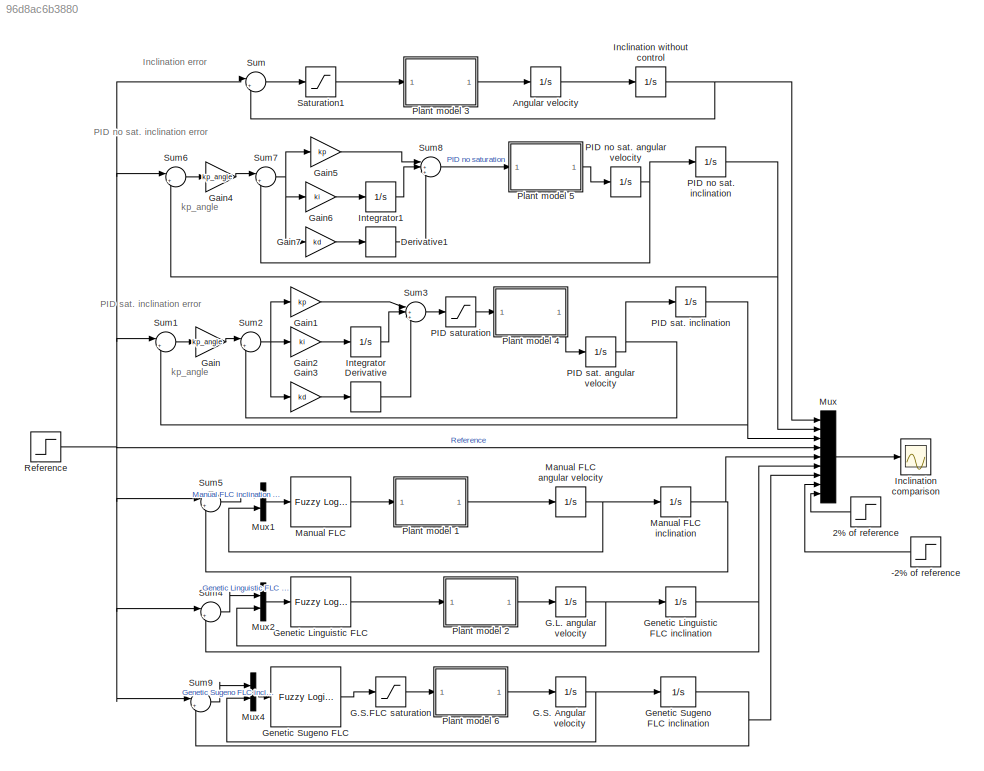
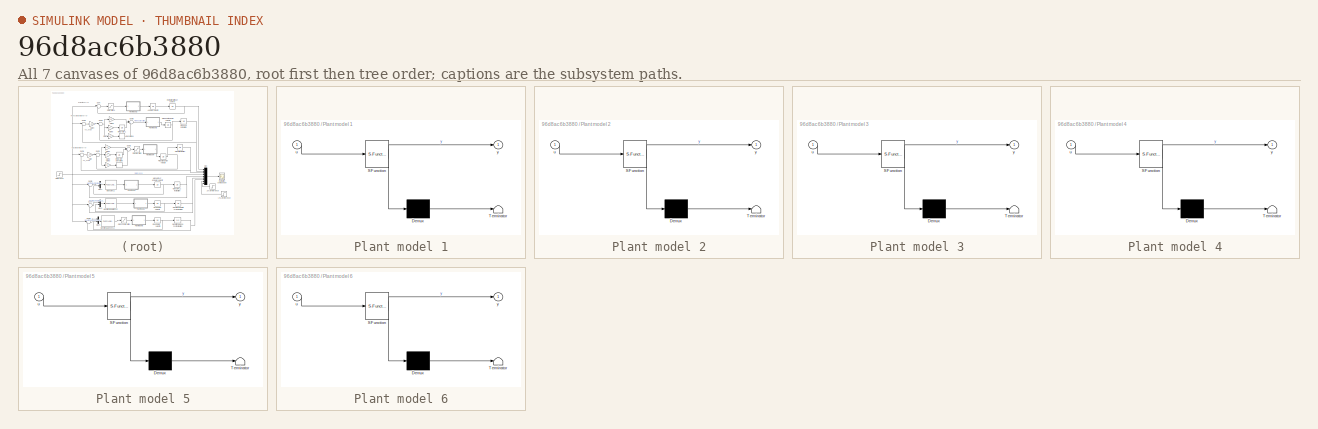
[diagram: thumbnail index - all 7 canvases of the model, root first then tree order]
MODEL slx_96d8ac6b3880
KIND model
CONFIG AbsTol = auto
CONFIG EnableMultiTasking = on
CONFIG FixedStep = auto
CONFIG MaxStep = 0.1
CONFIG MinStep = auto
CONFIG RelTol = 1e-3
CONFIG SampleTimeConstraint = Unconstrained
CONFIG SolverName = ode45
CONFIG StartTime = 0.0
CONFIG StopTime = 5
BLOCK [Step] -2% of reference
  After = -fi0*0.02
  Before = -fi0*0.02
  SampleTime = 0
  Time = 0
BLOCK [Step] 2% of reference
  After = fi0*0.02
  Before = fi0*0.02
  SampleTime = 0
  Time = 0
BLOCK [Integrator] Angular velocity 
  InitialCondition = v0
  Ports = [1, 1]
BLOCK [Derivative] Derivative
BLOCK [Derivative] Derivative1
BLOCK [Integrator] G.L. angular velocity
  InitialCondition = v0
  NameLocation = top
  Ports = [1, 1]
BLOCK [Integrator] G.S. Angular velocity
  InitialCondition = v0
  NameLocation = top
  Ports = [1, 1]
BLOCK [Saturate] G.S.FLC saturation
  LowerLimit = -45
  NameLocation = top
  UpperLimit = 45
BLOCK [Gain] Gain
  Gain = kp_angle
BLOCK [Gain] Gain1
  Gain = kp
BLOCK [Gain] Gain2
  Gain = ki
BLOCK [Gain] Gain3
  Gain = kd
BLOCK [Gain] Gain4
  Gain = kp_angle
BLOCK [Gain] Gain5
  Gain = kp
BLOCK [Gain] Gain6
  Gain = ki
BLOCK [Gain] Gain7
  Gain = kd
BLOCK [Reference] Genetic Linguistic FLC  REF=fuzblock/Fuzzy Logic   (lib defined in mdl_858b3b3e7478)
Controller 
with Ruleviewer
  Ports = [1, 1]
  SourceBlock = fuzblock/Fuzzy Logic \nController \nwith Ruleviewer
  SourceProductBaseCode = FL
  SourceType = Fuzzy Inference System
BLOCK [Integrator] Genetic Linguistic FLC inclination
  InitialCondition = fi0
  Ports = [1, 1]
BLOCK [Reference] Genetic Sugeno FLC  REF=fuzblock/Fuzzy Logic   (lib defined in mdl_858b3b3e7478)
Controller 
with Ruleviewer
  Ports = [1, 1]
  SourceBlock = fuzblock/Fuzzy Logic \nController \nwith Ruleviewer
  SourceProductBaseCode = FL
  SourceType = Fuzzy Inference System
BLOCK [Integrator] Genetic Sugeno FLC inclination
  InitialCondition = fi0
  Ports = [1, 1]
BLOCK [Scope] Inclination comparison
  Floating = off
  NumInputPorts = 1
  Ports = [1]
  ScopeSpecificationString = Simulink.scopes.TimeScopeBlockCfg('CurrentConfiguration', extmgr.ConfigurationSet(extmgr.Configuration('Core','General UI',true,'FigureColor',[1 1 1]),extmgr.Configuration('Core','Source UI',true),extmgr.Configuration('Sources','WiredSimulink',true,'DataLoggingLimitDataPoints',true,'DataLoggingSaveFormat','Array','DataLoggingDecimation','1','DataLoggingDecimateData',true),extmgr.Configuration('Vis...<+3499ch>
BLOCK [Integrator] Inclination without control
  InitialCondition = fi0
  Ports = [1, 1]
BLOCK [Integrator] Integrator
  LimitOutput = on
  LowerSaturationLimit = -3
  Ports = [1, 1]
  UpperSaturationLimit = 3
BLOCK [Integrator] Integrator1
  Ports = [1, 1]
BLOCK [Reference] Manual FLC   REF=fuzblock/Fuzzy Logic   (lib defined in mdl_858b3b3e7478)
Controller 
with Ruleviewer
  Ports = [1, 1]
  SourceBlock = fuzblock/Fuzzy Logic \nController \nwith Ruleviewer
  SourceProductBaseCode = FL
  SourceType = Fuzzy Inference System
BLOCK [Integrator] Manual FLC angular velocity
  InitialCondition = v0
  NameLocation = top
  Ports = [1, 1]
BLOCK [Integrator] Manual FLC inclination
  InitialCondition = fi0
  Ports = [1, 1]
BLOCK [Mux] Mux
  DisplayOption = bar
  Inputs = 9
  Ports = [9, 1]
BLOCK [Mux] Mux1
  DisplayOption = bar
  Inputs = 2
  Ports = [2, 1]
BLOCK [Mux] Mux2
  DisplayOption = bar
  Inputs = 2
  Ports = [2, 1]
BLOCK [Mux] Mux4
  DisplayOption = bar
  Inputs = 2
  Ports = [2, 1]
BLOCK [Integrator] PID no sat. angular velocity
  InitialCondition = v0
  Ports = [1, 1]
BLOCK [Integrator] PID no sat. inclination
  InitialCondition = fi0
  Ports = [1, 1]
BLOCK [Integrator] PID sat. angular velocity
  InitialCondition = v0
  Ports = [1, 1]
BLOCK [Integrator] PID sat. inclination
  InitialCondition = fi0
  Ports = [1, 1]
BLOCK [Saturate] PID saturation
  LowerLimit = -45
  UpperLimit = 45
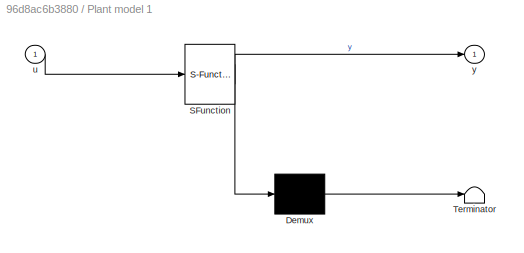
BLOCK [SubSystem] Plant model 1
  ErrorFcn = Stateflow.Translate.translate
  PermitHierarchicalResolution = ExplicitOnly
  Ports = [1, 1]
  RequestExecContextInheritance = off
  SFBlockType = MATLAB Function
  TreatAsAtomicUnit = on
BLOCK [Demux] Plant model 1/ Demux 
  Outputs = 1
  Ports = [1, 1]
BLOCK [S-Function] Plant model 1/ SFunction 
  EnableBusSupport = on
  FunctionName = sf_sfun
  PortCounts = [1 2]
  Ports = [1, 2]
  SFcnIsStateOwnerBlock = off
  SFunctionDeploymentMode = off
  Tag = Stateflow S-Function 4
BLOCK [Terminator] Plant model 1/ Terminator 
BLOCK [Inport] Plant model 1/u
BLOCK [Outport] Plant model 1/y
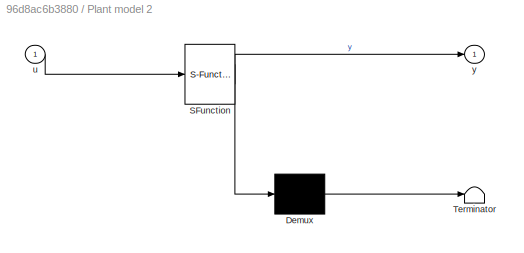
BLOCK [SubSystem] Plant model 2
  ErrorFcn = Stateflow.Translate.translate
  PermitHierarchicalResolution = ExplicitOnly
  Ports = [1, 1]
  RequestExecContextInheritance = off
  SFBlockType = MATLAB Function
  TreatAsAtomicUnit = on
BLOCK [Demux] Plant model 2/ Demux 
  Outputs = 1
  Ports = [1, 1]
BLOCK [S-Function] Plant model 2/ SFunction 
  EnableBusSupport = on
  FunctionName = sf_sfun
  PortCounts = [1 2]
  Ports = [1, 2]
  SFcnIsStateOwnerBlock = off
  SFunctionDeploymentMode = off
  Tag = Stateflow S-Function 3
BLOCK [Terminator] Plant model 2/ Terminator 
BLOCK [Inport] Plant model 2/u
BLOCK [Outport] Plant model 2/y
BLOCK [SubSystem] Plant model 3
  ErrorFcn = Stateflow.Translate.translate
  PermitHierarchicalResolution = ExplicitOnly
  Ports = [1, 1]
  RequestExecContextInheritance = off
  SFBlockType = MATLAB Function
  TreatAsAtomicUnit = on
BLOCK [Demux] Plant model 3/ Demux 
  Outputs = 1
  Ports = [1, 1]
BLOCK [S-Function] Plant model 3/ SFunction 
  EnableBusSupport = on
  FunctionName = sf_sfun
  PortCounts = [1 2]
  Ports = [1, 2]
  SFcnIsStateOwnerBlock = off
  SFunctionDeploymentMode = off
  Tag = Stateflow S-Function 2
BLOCK [Terminator] Plant model 3/ Terminator 
BLOCK [Inport] Plant model 3/u
BLOCK [Outport] Plant model 3/y
BLOCK [SubSystem] Plant model 4
  ErrorFcn = Stateflow.Translate.translate
  PermitHierarchicalResolution = ExplicitOnly
  Ports = [1, 1]
  RequestExecContextInheritance = off
  SFBlockType = MATLAB Function
  TreatAsAtomicUnit = on
BLOCK [Demux] Plant model 4/ Demux 
  Outputs = 1
  Ports = [1, 1]
BLOCK [S-Function] Plant model 4/ SFunction 
  EnableBusSupport = on
  FunctionName = sf_sfun
  PortCounts = [1 2]
  Ports = [1, 2]
  SFcnIsStateOwnerBlock = off
  SFunctionDeploymentMode = off
  Tag = Stateflow S-Function 1
BLOCK [Terminator] Plant model 4/ Terminator 
BLOCK [Inport] Plant model 4/u
BLOCK [Outport] Plant model 4/y
BLOCK [SubSystem] Plant model 5
  ErrorFcn = Stateflow.Translate.translate
  NameLocation = top
  PermitHierarchicalResolution = ExplicitOnly
  Ports = [1, 1]
  RequestExecContextInheritance = off
  SFBlockType = MATLAB Function
  TreatAsAtomicUnit = on
BLOCK [Demux] Plant model 5/ Demux 
  Outputs = 1
  Ports = [1, 1]
BLOCK [S-Function] Plant model 5/ SFunction 
  EnableBusSupport = on
  FunctionName = sf_sfun
  PortCounts = [1 2]
  Ports = [1, 2]
  SFcnIsStateOwnerBlock = off
  SFunctionDeploymentMode = off
  Tag = Stateflow S-Function 5
BLOCK [Terminator] Plant model 5/ Terminator 
BLOCK [Inport] Plant model 5/u
BLOCK [Outport] Plant model 5/y
BLOCK [SubSystem] Plant model 6
  ErrorFcn = Stateflow.Translate.translate
  PermitHierarchicalResolution = ExplicitOnly
  Ports = [1, 1]
  RequestExecContextInheritance = off
  SFBlockType = MATLAB Function
  TreatAsAtomicUnit = on
BLOCK [Demux] Plant model 6/ Demux 
  Outputs = 1
  Ports = [1, 1]
BLOCK [S-Function] Plant model 6/ SFunction 
  EnableBusSupport = on
  FunctionName = sf_sfun
  PortCounts = [1 2]
  Ports = [1, 2]
  SFcnIsStateOwnerBlock = off
  SFunctionDeploymentMode = off
  Tag = Stateflow S-Function 6
BLOCK [Terminator] Plant model 6/ Terminator 
BLOCK [Inport] Plant model 6/u
BLOCK [Outport] Plant model 6/y
BLOCK [Step] Reference
  After = 0
  Before = fi0
  SampleTime = 0
BLOCK [Saturate] Saturation1
  LowerLimit = -45
  UpperLimit = 45
BLOCK [Sum] Sum
  Inputs = |+-
  Ports = [2, 1]
BLOCK [Sum] Sum1
  Inputs = |+-
  Ports = [2, 1]
BLOCK [Sum] Sum2
  Inputs = |+-
  Ports = [2, 1]
BLOCK [Sum] Sum3
  Inputs = |++-
  Ports = [3, 1]
BLOCK [Sum] Sum4
  Inputs = |+-
  Ports = [2, 1]
BLOCK [Sum] Sum5
  Inputs = |+-
  Ports = [2, 1]
BLOCK [Sum] Sum6
  Inputs = |+-
  Ports = [2, 1]
BLOCK [Sum] Sum7
  Inputs = |+-
  Ports = [2, 1]
BLOCK [Sum] Sum8
  Inputs = |++-
  Ports = [3, 1]
BLOCK [Sum] Sum9
  Inputs = |+-
  Ports = [2, 1]
ANNOTATION (root): Inclination error
ANNOTATION (root): PID no sat. inclination error
ANNOTATION (root): PID sat. inclination error
ANNOTATION (root): kp_angle
LINE -2% of reference:1 -> Mux:8
LINE 2% of reference:1 -> Mux:9
LINE Angular velocity :1 -> Inclination without control:1
LINE Derivative1:1 -> Sum8:3
LINE Derivative:1 -> Sum3:3
NET G.L. angular velocity:1 -> Genetic Linguistic FLC inclination:1, Mux2:2
NET G.S. Angular velocity:1 -> Genetic Sugeno FLC inclination:1, Mux4:2
LINE G.S.FLC saturation:1 -> Plant model 6:1
LINE Gain1:1 -> Sum3:1
LINE Gain2:1 -> Integrator:1
LINE Gain3:1 -> Derivative:1
LINE Gain4:1 -> Sum7:1
LINE Gain5:1 -> Sum8:1
LINE Gain6:1 -> Integrator1:1
LINE Gain7:1 -> Derivative1:1
LINE Gain:1 -> Sum2:1
NET Genetic Linguistic FLC inclination:1 -> Mux:6, Sum4:2
LINE Genetic Linguistic FLC:1 -> Plant model 2:1
NET Genetic Sugeno FLC inclination:1 -> Mux:7, Sum9:2
LINE Genetic Sugeno FLC:1 -> G.S.FLC saturation:1
NET Inclination without control:1 -> Mux:1, Sum:2
LINE Integrator1:1 -> Sum8:2
LINE Integrator:1 -> Sum3:2
LINE Manual FLC :1 -> Plant model 1:1
NET Manual FLC angular velocity:1 -> Manual FLC inclination:1, Mux1:2
NET Manual FLC inclination:1 -> Mux:5, Sum5:2
LINE Mux1:1 -> Manual FLC :1
LINE Mux2:1 -> Genetic Linguistic FLC:1
LINE Mux4:1 -> Genetic Sugeno FLC:1
LINE Mux:1 -> Inclination comparison:1
NET PID no sat. angular velocity:1 -> PID no sat. inclination:1, Sum7:2
NET PID no sat. inclination:1 -> Mux:2, Sum6:2
NET PID sat. angular velocity:1 -> PID sat. inclination:1, Sum2:2
NET PID sat. inclination:1 -> Mux:3, Sum1:2
LINE PID saturation:1 -> Plant model 4:1
LINE Plant model 1:1 -> Manual FLC angular velocity:1
LINE Plant model 2:1 -> G.L. angular velocity:1
LINE Plant model 3:1 -> Angular velocity :1
LINE Plant model 4:1 -> PID sat. angular velocity:1
LINE Plant model 5:1 -> PID no sat. angular velocity:1
LINE Plant model 6:1 -> G.S. Angular velocity:1
NET Reference:1 -> Mux:4, Sum1:1, Sum4:1, Sum5:1, Sum6:1, Sum9:1, Sum:1
LINE Saturation1:1 -> Plant model 3:1
LINE Sum1:1 -> Gain:1
NET Sum2:1 -> Gain1:1, Gain2:1, Gain3:1
LINE Sum3:1 -> PID saturation:1
LINE Sum4:1 -> Mux2:1
LINE Sum5:1 -> Mux1:1
LINE Sum6:1 -> Gain4:1
NET Sum7:1 -> Gain5:1, Gain6:1, Gain7:1
LINE Sum8:1 -> Plant model 5:1
LINE Sum9:1 -> Mux4:1
LINE Sum:1 -> Saturation1:1
note: NET lines group one-source signal fan-out (src -> all destinations, sorted); 1:1 wires keep LINE
CHART Plant model 3 states=1 transitions=1
  STATE_LABEL 'eML_blk_kernel()'
  STATE_LABEL 'SCRIPT:\nfunction y = fcn(u)\n%% \n% Model controllers provide a flap angle \n% u stands for the angle of a flap\n% Translation of 45 degrees is needed to match with gamma in Eq. 25\n\n%#codegen\nd = 0.02; % Distancia vertical del Flap hasta el C.G.\nL = 0.5; % Diametro del UAV\n\nFsur = 2.0614;% Fsur \nKeff = 0.9; % Keff\nInercia =0.0067;%Moment of inertia\n\ny=-Fsur * Keff *(cosd(45+u)-sind(45+u)) * (d + L/2)/...<+8ch>'  <repeated x6 — deduplicated; at blocks: Plant model 3, Plant model 2, Plant model 1, Plant model 5, Plant model 6, Plant model 4>
CHART Plant model 2 states=1 transitions=1
  STATE_LABEL 'eML_blk_kernel()'
CHART Plant model 1 states=1 transitions=1
  STATE_LABEL 'eML_blk_kernel()'
CHART Plant model 5 states=1 transitions=1
  STATE_LABEL 'eML_blk_kernel()'
CHART Plant model 6 states=1 transitions=1
  STATE_LABEL 'eML_blk_kernel()'
CHART Plant model 4 states=1 transitions=1
  STATE_LABEL 'eML_blk_kernel()'
CHART  states=0 transitions=0
CHART  states=0 transitions=0
CHART  states=0 transitions=0
CHART  states=0 transitions=0
CHART  states=0 transitions=0
CHART  states=0 transitions=0
